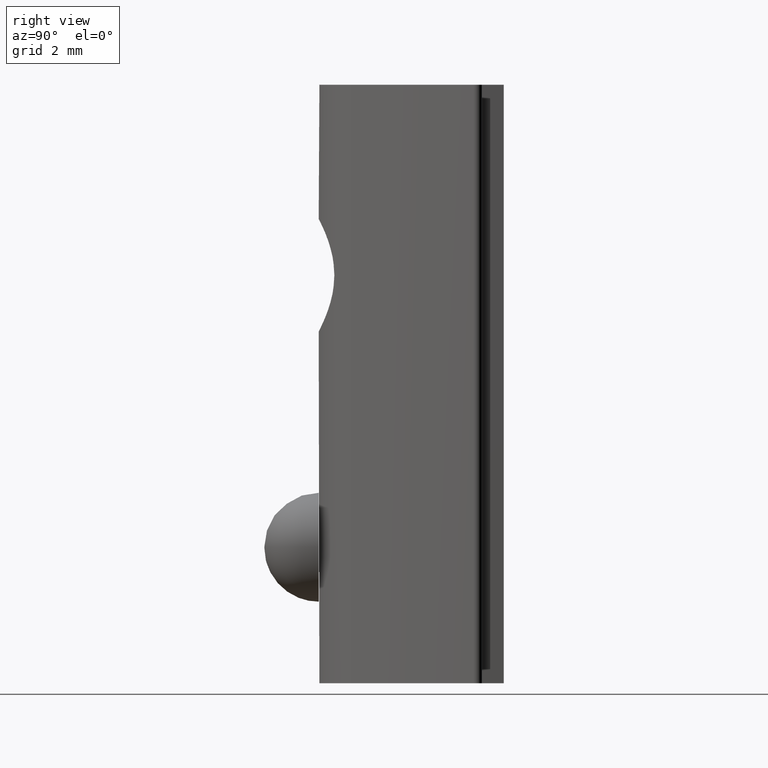
[diagram: clean part render]
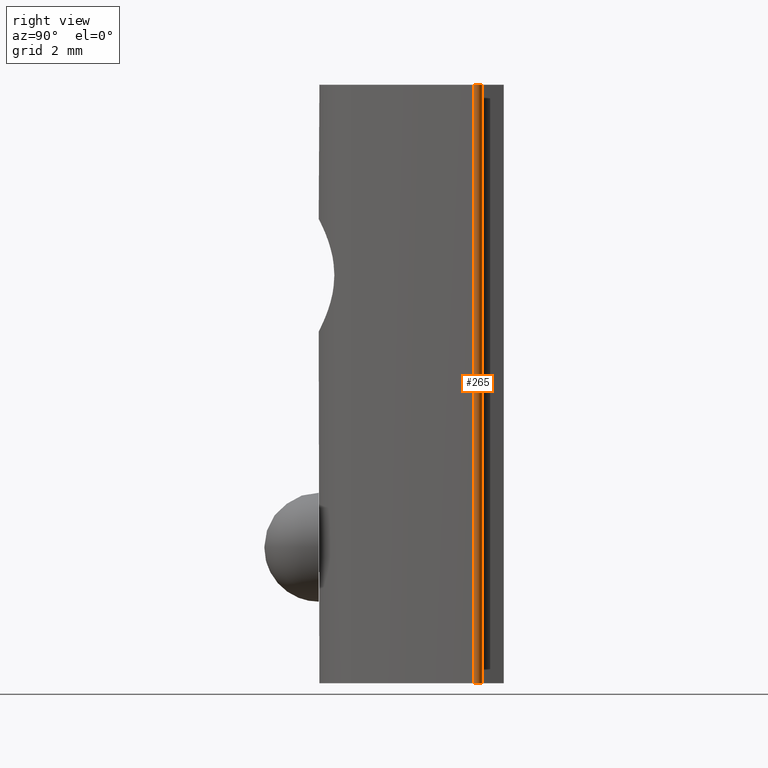
[diagram: same view with one face highlighted and labeled with its STEP entity id]
A machine part, right view. The second image highlights one B-rep face of the part: STEP entity #265.
In plain terms, the highlighted cylindrical surface (edge-blend (fillet) strip) has radius 0.2 mm, axis along (0, 0, 1).
Its self-contained STEP definition (entity closure, byte-faithful):
#26=LINE('',#466,#47);
#27=LINE('',#469,#48);
#47=VECTOR('',#351,22.);
#48=VECTOR('',#354,22.);
#79=CIRCLE('',#291,0.2);
#80=CIRCLE('',#293,0.2);
#91=FACE_OUTER_BOUND('',#108,.T.);
#108=EDGE_LOOP('',(#206,#207,#208,#209));
#133=VERTEX_POINT('',#453);
#134=VERTEX_POINT('',#455);
#138=VERTEX_POINT('',#465);
#139=VERTEX_POINT('',#467);
#160=EDGE_CURVE('',#134,#133,#79,.T.);
#165=EDGE_CURVE('',#133,#138,#26,.T.);
#166=EDGE_CURVE('',#138,#139,#80,.T.);
#167=EDGE_CURVE('',#139,#134,#27,.T.);
#206=ORIENTED_EDGE('',*,*,#160,.T.);
#207=ORIENTED_EDGE('',*,*,#165,.T.);
#208=ORIENTED_EDGE('',*,*,#166,.T.);
#209=ORIENTED_EDGE('',*,*,#167,.T.);
#254=CYLINDRICAL_SURFACE('',#292,0.2);
#265=ADVANCED_FACE('',(#91),#254,.T.);
#291=AXIS2_PLACEMENT_3D('',#456,#343,#344);
#292=AXIS2_PLACEMENT_3D('',#464,#349,#350);
#293=AXIS2_PLACEMENT_3D('',#468,#352,#353);
#343=DIRECTION('center_axis',(0.,0.,-1.));
#344=DIRECTION('ref_axis',(0.869650504899644,0.493667903886605,0.));
#349=DIRECTION('center_axis',(0.,0.,1.));
#350=DIRECTION('ref_axis',(0.869650504899644,0.493667903886605,0.));
#351=DIRECTION('',(0.,0.,-1.));
#352=DIRECTION('center_axis',(0.,0.,1.));
#353=DIRECTION('ref_axis',(0.869650504899644,0.493667903886605,0.));
#354=DIRECTION('',(0.,0.,1.));
#453=CARTESIAN_POINT('',(6.32238630786788,5.69748319973111,22.));
#455=CARTESIAN_POINT('',(6.15065889112079,6.,22.));
#456=CARTESIAN_POINT('Origin',(6.15065889112079,5.8,22.));
#464=CARTESIAN_POINT('Origin',(6.15065889112079,5.8,0.));
#465=CARTESIAN_POINT('',(6.32238630786788,5.69748319973111,0.));
#466=CARTESIAN_POINT('',(6.32238630786788,5.69748319973111,0.));
#467=CARTESIAN_POINT('',(6.15065889112079,6.,0.));
#468=CARTESIAN_POINT('Origin',(6.15065889112079,5.8,0.));
#469=CARTESIAN_POINT('',(6.15065889112079,6.,0.));